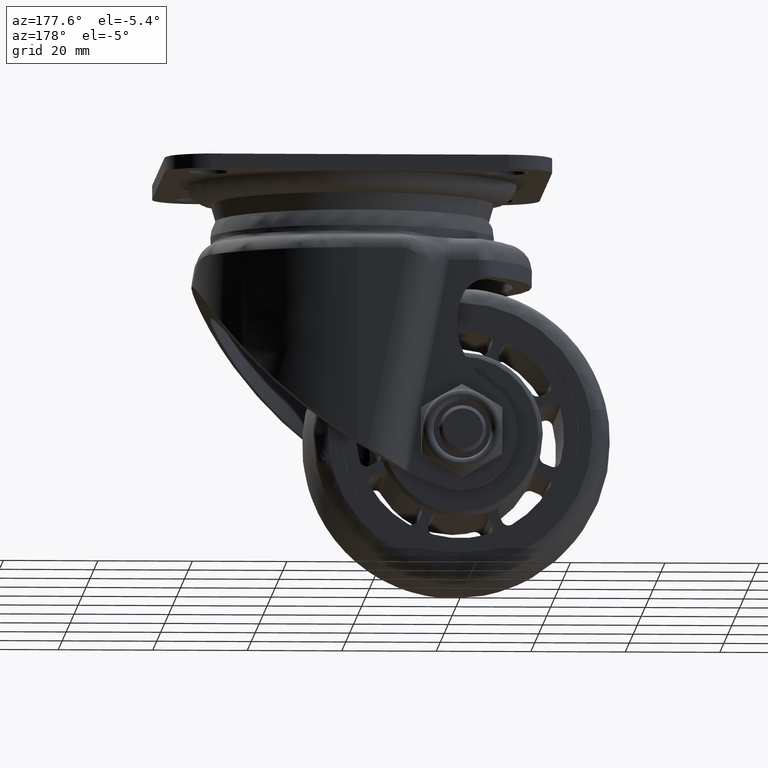
[diagram: clean part render]
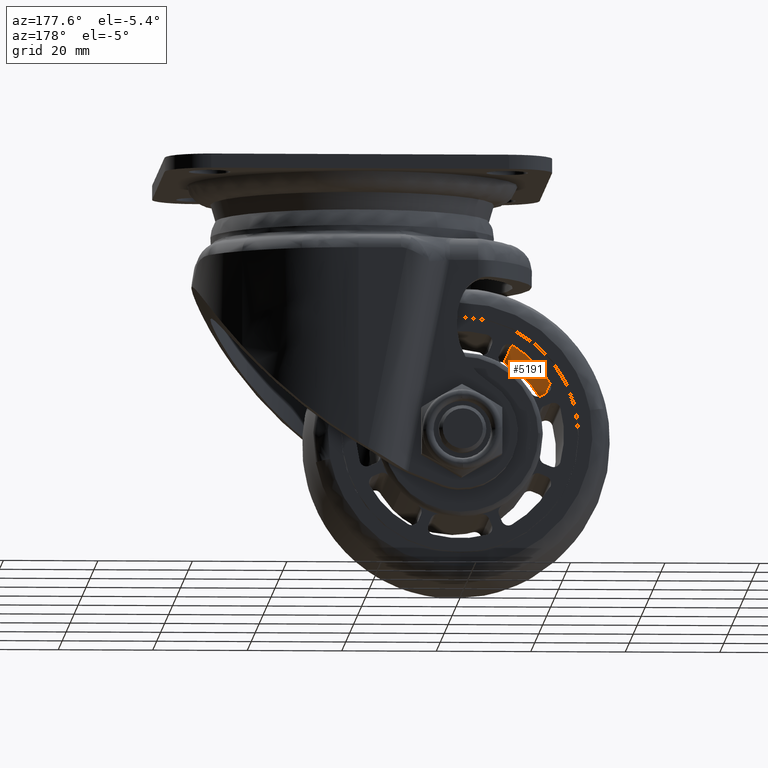
[diagram: same view with one face highlighted and labeled with its STEP entity id]
A machine part, auxiliary view. The second image highlights one B-rep face of the part: STEP entity #5191.
In plain terms, the highlighted face is a freeform B-spline surface patch.
Its self-contained STEP definition (entity closure, byte-faithful):
#4126=CARTESIAN_POINT('',(-19.066498678544050,-20.000000000000249,10.975820158014621));
#4127=VERTEX_POINT('',#4126);
#4139=CARTESIAN_POINT('',(-10.975820158014560,-20.000000000000249,19.066498678544150));
#4140=VERTEX_POINT('',#4139);
#4141=CARTESIAN_POINT('',(-10.975820158014560,-20.000000000000249,19.066498678544150));
#4142=CARTESIAN_POINT('',(-11.707291438535879,-20.000000000000249,18.645428358666909));
#4143=CARTESIAN_POINT('',(-13.374296468887611,-20.000000000000291,17.553583206298821));
#4144=CARTESIAN_POINT('',(-16.295371950457799,-20.000000000000210,15.014837310393110));
#4145=CARTESIAN_POINT('',(-18.134585502395691,-20.000000000000270,12.595853256242879));
#4146=CARTESIAN_POINT('',(-19.066498678544050,-20.000000000000249,10.975820158014621));
#4147=B_SPLINE_CURVE_WITH_KNOTS('',3,(#4141,#4142,#4143,#4144,#4145,#4146),.UNSPECIFIED.,.F.,.U.,(4,1,1,4),(0.000000010374148,2.532036305045745,5.968359968725982,11.575026182032749),.UNSPECIFIED.);
#4148=EDGE_CURVE('',#4140,#4127,#4147,.T.);
#5136=CARTESIAN_POINT('',(-19.066498678544050,20.0,10.975820158014621));
#5137=VERTEX_POINT('',#5136);
#5149=CARTESIAN_POINT('',(-19.066498678544050,20.0,10.975820158014621));
#5150=CARTESIAN_POINT('',(-19.066498678544050,-20.000000000000249,10.975820158014621));
#5151=QUASI_UNIFORM_CURVE('',1,(#5149,#5150),.UNSPECIFIED.,.F.,.U.);
#5152=EDGE_CURVE('',#5137,#4127,#5151,.T.);
#5157=CARTESIAN_POINT('',(-19.343981052141498,21.000000000000011,10.479045617535670));
#5158=CARTESIAN_POINT('',(-19.343981052141498,-21.025000000000258,10.479045617535670));
#5159=CARTESIAN_POINT('',(-16.228302695573987,21.0,16.230487618432626));
#5160=CARTESIAN_POINT('',(-16.228302695573987,-21.025000000000254,16.230487618432626));
#5161=CARTESIAN_POINT('',(-10.476441290819453,21.000000000000007,19.345391644523943));
#5162=CARTESIAN_POINT('',(-10.476441290819453,-21.025000000000261,19.345391644523943));
#5170=(BOUNDED_SURFACE()B_SPLINE_SURFACE(1,2,((#5157,#5159,#5161),(#5158,#5160,#5162)),.UNSPECIFIED.,.F.,.F.,.U.)B_SPLINE_SURFACE_WITH_KNOTS((2,2),(3,3),(0.0,42.025000000000283),(0.0,12.805249304057140),.UNSPECIFIED.)GEOMETRIC_REPRESENTATION_ITEM()RATIONAL_B_SPLINE_SURFACE(((0.997581924779064,0.953619193845936,0.992180531731879),(0.997581924779064,0.953619193845936,0.992180531731879)))REPRESENTATION_ITEM('')SURFACE());
#5171=ORIENTED_EDGE('',*,*,#4148,.T.);
#5172=ORIENTED_EDGE('',*,*,#5152,.F.);
#5173=CARTESIAN_POINT('',(-10.975820158014560,20.0,19.066498678544150));
#5174=VERTEX_POINT('',#5173);
#5175=CARTESIAN_POINT('',(-10.975820158014560,20.0,19.066498678544150));
#5176=CARTESIAN_POINT('',(-12.491282568628590,20.000000000000021,18.194628635341381));
#5177=CARTESIAN_POINT('',(-14.485212977376410,19.999999999999979,16.704427883177470));
#5178=CARTESIAN_POINT('',(-17.148572299197909,20.000000000000099,13.906260335476290));
#5179=CARTESIAN_POINT('',(-18.374859198370160,19.999999999999829,12.177611336790569));
#5180=CARTESIAN_POINT('',(-19.066498678544050,20.0,10.975820158014621));
#5181=B_SPLINE_CURVE_WITH_KNOTS('',3,(#5175,#5176,#5177,#5178,#5179,#5180),.UNSPECIFIED.,.F.,.U.,(4,1,1,4),(0.000000010374148,5.244948362923935,7.415249938622892,11.575026182032749),.UNSPECIFIED.);
#5182=EDGE_CURVE('',#5174,#5137,#5181,.T.);
#5183=ORIENTED_EDGE('',*,*,#5182,.F.);
#5184=CARTESIAN_POINT('',(-10.975820158014560,20.0,19.066498678544150));
#5185=CARTESIAN_POINT('',(-10.975820158014560,-20.000000000000249,19.066498678544150));
#5186=QUASI_UNIFORM_CURVE('',1,(#5184,#5185),.UNSPECIFIED.,.F.,.U.);
#5187=EDGE_CURVE('',#5174,#4140,#5186,.T.);
#5188=ORIENTED_EDGE('',*,*,#5187,.T.);
#5189=EDGE_LOOP('',(#5171,#5172,#5183,#5188));
#5190=FACE_OUTER_BOUND('',#5189,.T.);
#5191=ADVANCED_FACE('',(#5190),#5170,.F.);